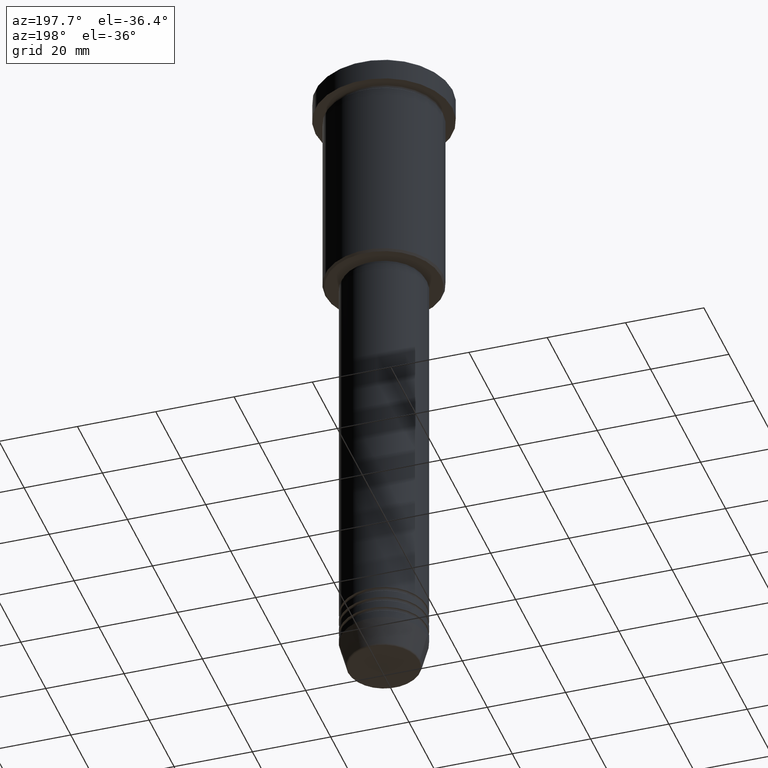
[diagram: clean part render]
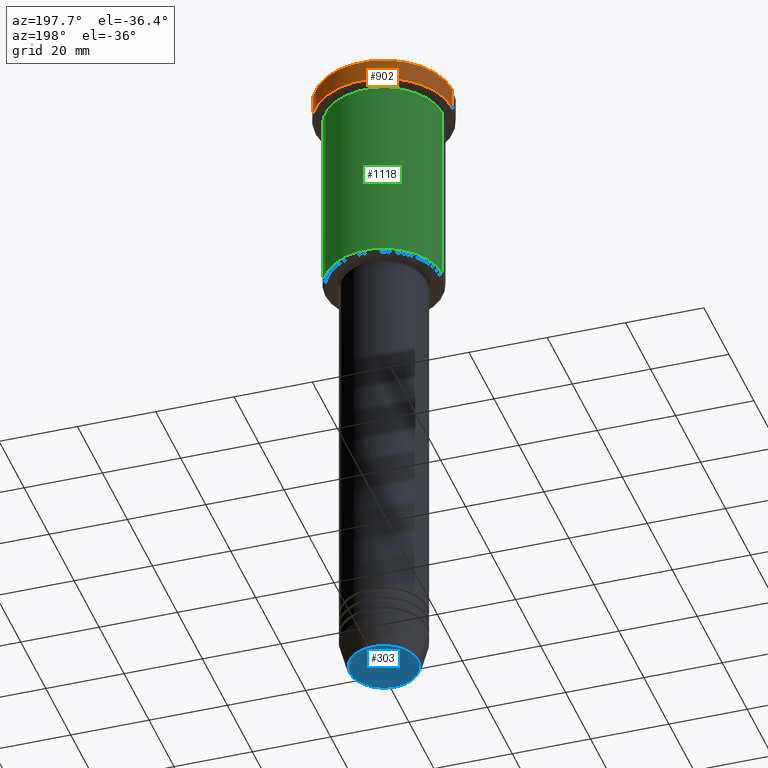
[diagram: same view with three faces highlighted in distinct colors, each labeled with its STEP entity id]
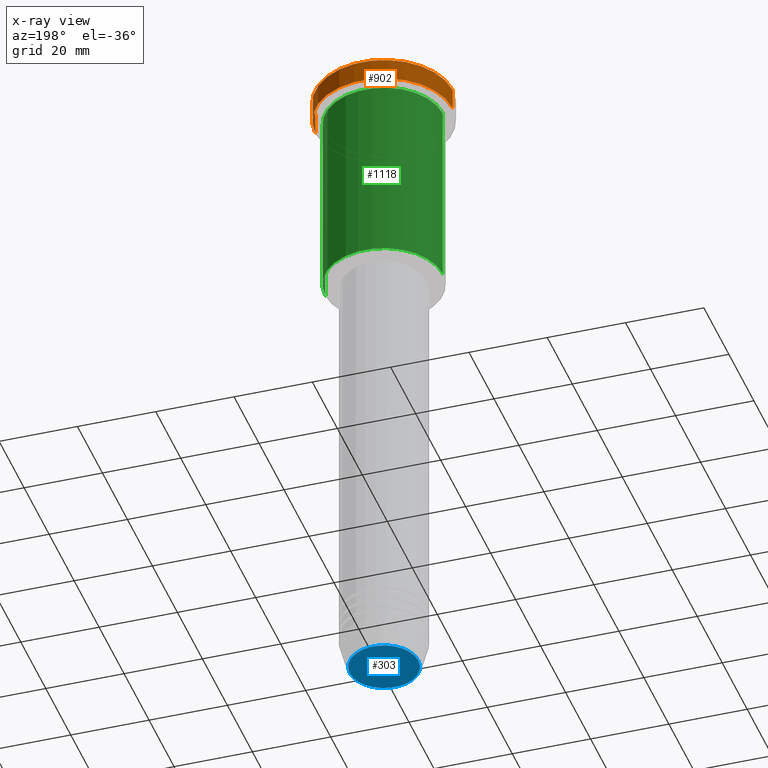
[diagram: x-ray of the same camera — body ghosted, the three highlighted faces saturated]
A machine part, auxiliary view with three faces highlighted in distinct colors.
The next image is the same camera in x-ray (body ghosted, the three faces saturated) — at least one of them is partly hidden behind the body in this view.
Their STEP definitions:

[orange] entity #902 — the highlighted cylindrical surface (partial cylindrical patch) has radius 17.5 mm, axis along (-0, -0, 1).
#12 = AXIS2_PLACEMENT_3D ( 'NONE', #865, #316, #884 ) ;
#73 = ORIENTED_EDGE ( 'NONE', *, *, #1004, .F. ) ;
#85 = CARTESIAN_POINT ( 'NONE',  ( 17.50000000000000000, 0.000000000000000000, -5.999999999999995559 ) ) ;
#89 = AXIS2_PLACEMENT_3D ( 'NONE', #387, #1006, #746 ) ;
#141 = VERTEX_POINT ( 'NONE', #85 ) ;
#214 = AXIS2_PLACEMENT_3D ( 'NONE', #1089, #563, #929 ) ;
#229 = EDGE_CURVE ( 'NONE', #623, #323, #1115, .T. ) ;
#231 = ORIENTED_EDGE ( 'NONE', *, *, #639, .T. ) ;
#316 = DIRECTION ( 'NONE',  ( -0.000000000000000000, -0.000000000000000000, 1.000000000000000000 ) ) ;
#323 = VERTEX_POINT ( 'NONE', #684 ) ;
#344 = LINE ( 'NONE', #810, #349 ) ;
#349 = VECTOR ( 'NONE', #1163, 1000.000000000000000 ) ;
#375 = CARTESIAN_POINT ( 'NONE',  ( -17.50000000000000000, 2.143131898507868248E-15, -5.999999999999995559 ) ) ;
#387 = CARTESIAN_POINT ( 'NONE',  ( 0.000000000000000000, 0.000000000000000000, -0.4999999999999727995 ) ) ;
#557 = DIRECTION ( 'NONE',  ( -0.000000000000000000, -0.000000000000000000, 1.000000000000000000 ) ) ;
#563 = DIRECTION ( 'NONE',  ( -0.000000000000000000, -0.000000000000000000, 1.000000000000000000 ) ) ;
#623 = VERTEX_POINT ( 'NONE', #1055 ) ;
#639 = EDGE_CURVE ( 'NONE', #141, #851, #1135, .T. ) ;
#684 = CARTESIAN_POINT ( 'NONE',  ( 17.50000000000000000, 0.000000000000000000, -0.4999999999999727995 ) ) ;
#746 = DIRECTION ( 'NONE',  ( 1.000000000000000000, 0.000000000000000000, 0.000000000000000000 ) ) ;
#750 = VECTOR ( 'NONE', #557, 1000.000000000000000 ) ;
#765 = LINE ( 'NONE', #835, #750 ) ;
#810 = CARTESIAN_POINT ( 'NONE',  ( 17.50000000000000000, 0.000000000000000000, 0.000000000000000000 ) ) ;
#835 = CARTESIAN_POINT ( 'NONE',  ( -17.50000000000000000, 2.143131898507868248E-15, 0.000000000000000000 ) ) ;
#851 = VERTEX_POINT ( 'NONE', #375 ) ;
#865 = CARTESIAN_POINT ( 'NONE',  ( 0.000000000000000000, 0.000000000000000000, -5.999999999999995559 ) ) ;
#884 = DIRECTION ( 'NONE',  ( 1.000000000000000000, 0.000000000000000000, 0.000000000000000000 ) ) ;
#902 = ADVANCED_FACE ( 'NONE', ( #1022 ), #1018, .T. ) ;
#929 = DIRECTION ( 'NONE',  ( 1.000000000000000000, 0.000000000000000000, 0.000000000000000000 ) ) ;
#998 = ORIENTED_EDGE ( 'NONE', *, *, #1088, .T. ) ;
#1004 = EDGE_CURVE ( 'NONE', #141, #323, #344, .T. ) ;
#1006 = DIRECTION ( 'NONE',  ( 0.000000000000000000, 0.000000000000000000, -1.000000000000000000 ) ) ;
#1018 = CYLINDRICAL_SURFACE ( 'NONE', #214, 17.50000000000000000 ) ;
#1020 = EDGE_LOOP ( 'NONE', ( #231, #998, #1034, #73 ) ) ;
#1022 = FACE_OUTER_BOUND ( 'NONE', #1020, .T. ) ;
#1034 = ORIENTED_EDGE ( 'NONE', *, *, #229, .T. ) ;
#1055 = CARTESIAN_POINT ( 'NONE',  ( -17.50000000000000000, 2.143131898507868248E-15, -0.4999999999999727995 ) ) ;
#1088 = EDGE_CURVE ( 'NONE', #851, #623, #765, .T. ) ;
#1089 = CARTESIAN_POINT ( 'NONE',  ( 0.000000000000000000, 0.000000000000000000, 0.000000000000000000 ) ) ;
#1115 = CIRCLE ( 'NONE', #89, 17.50000000000000000 ) ;
#1135 = CIRCLE ( 'NONE', #12, 17.50000000000000000 ) ;
#1163 = DIRECTION ( 'NONE',  ( -0.000000000000000000, -0.000000000000000000, 1.000000000000000000 ) ) ;

[blue] entity #303 — the highlighted planar face has unit normal (0, -0, 1).
#84 = CARTESIAN_POINT ( 'NONE',  ( -8.740692158992663607, 1.099999016768740442E-15, -170.9999999999999716 ) ) ;
#102 = FACE_OUTER_BOUND ( 'NONE', #260, .T. ) ;
#260 = EDGE_LOOP ( 'NONE', ( #735, #728 ) ) ;
#303 = ADVANCED_FACE ( 'NONE', ( #102 ), #479, .F. ) ;
#363 = CIRCLE ( 'NONE', #1043, 8.740692158992663607 ) ;
#433 = CARTESIAN_POINT ( 'NONE',  ( 0.000000000000000000, 0.000000000000000000, -170.9999999999999716 ) ) ;
#437 = DIRECTION ( 'NONE',  ( 1.000000000000000000, 0.000000000000000000, 0.000000000000000000 ) ) ;
#462 = CARTESIAN_POINT ( 'NONE',  ( 0.000000000000000000, 0.000000000000000000, -170.9999999999999716 ) ) ;
#464 = DIRECTION ( 'NONE',  ( 0.000000000000000000, -0.000000000000000000, 1.000000000000000000 ) ) ;
#479 = PLANE ( 'NONE',  #730 ) ;
#640 = CARTESIAN_POINT ( 'NONE',  ( 8.740692158992663607, 0.000000000000000000, -170.9999999999999716 ) ) ;
#642 = VERTEX_POINT ( 'NONE', #84 ) ;
#675 = EDGE_CURVE ( 'NONE', #938, #642, #363, .T. ) ;
#728 = ORIENTED_EDGE ( 'NONE', *, *, #1146, .T. ) ;
#730 = AXIS2_PLACEMENT_3D ( 'NONE', #854, #464, #841 ) ;
#735 = ORIENTED_EDGE ( 'NONE', *, *, #675, .T. ) ;
#748 = DIRECTION ( 'NONE',  ( 0.000000000000000000, 0.000000000000000000, -1.000000000000000000 ) ) ;
#815 = DIRECTION ( 'NONE',  ( 0.000000000000000000, 0.000000000000000000, -1.000000000000000000 ) ) ;
#841 = DIRECTION ( 'NONE',  ( 1.000000000000000000, 0.000000000000000000, 0.000000000000000000 ) ) ;
#854 = CARTESIAN_POINT ( 'NONE',  ( 0.000000000000000000, 0.000000000000000000, -170.9999999999999716 ) ) ;
#938 = VERTEX_POINT ( 'NONE', #640 ) ;
#1043 = AXIS2_PLACEMENT_3D ( 'NONE', #433, #815, #437 ) ;
#1058 = AXIS2_PLACEMENT_3D ( 'NONE', #462, #748, #1077 ) ;
#1077 = DIRECTION ( 'NONE',  ( 1.000000000000000000, 0.000000000000000000, 0.000000000000000000 ) ) ;
#1146 = EDGE_CURVE ( 'NONE', #642, #938, #1152, .T. ) ;
#1152 = CIRCLE ( 'NONE', #1058, 8.740692158992663607 ) ;

[green] entity #1118 — the highlighted cylindrical surface (partial cylindrical patch) has radius 15 mm, axis along (-0, -0, 1).
#17 = EDGE_CURVE ( 'NONE', #799, #638, #1041, .T. ) ;
#22 = DIRECTION ( 'NONE',  ( -1.000000000000000000, 0.000000000000000000, 0.000000000000000000 ) ) ;
#31 = CIRCLE ( 'NONE', #690, 15.00000000000000000 ) ;
#64 = EDGE_CURVE ( 'NONE', #1123, #638, #1002, .T. ) ;
#66 = CARTESIAN_POINT ( 'NONE',  ( -15.00000000000000000, 1.836970198721029589E-15, 0.000000000000000000 ) ) ;
#91 = VECTOR ( 'NONE', #127, 1000.000000000000000 ) ;
#92 = VERTEX_POINT ( 'NONE', #807 ) ;
#127 = DIRECTION ( 'NONE',  ( -0.000000000000000000, -0.000000000000000000, 1.000000000000000000 ) ) ;
#147 = ORIENTED_EDGE ( 'NONE', *, *, #562, .F. ) ;
#263 = DIRECTION ( 'NONE',  ( 1.000000000000000000, 0.000000000000000000, 0.000000000000000000 ) ) ;
#302 = DIRECTION ( 'NONE',  ( -0.000000000000000000, -0.000000000000000000, 1.000000000000000000 ) ) ;
#345 = ORIENTED_EDGE ( 'NONE', *, *, #64, .T. ) ;
#354 = CARTESIAN_POINT ( 'NONE',  ( 0.000000000000000000, 0.000000000000000000, -6.999999999999995559 ) ) ;
#393 = CARTESIAN_POINT ( 'NONE',  ( -15.00000000000000000, 1.836970198721029589E-15, -6.999999999999995559 ) ) ;
#399 = ORIENTED_EDGE ( 'NONE', *, *, #947, .T. ) ;
#410 = LINE ( 'NONE', #1126, #91 ) ;
#442 = CARTESIAN_POINT ( 'NONE',  ( 0.000000000000000000, 0.000000000000000000, 0.000000000000000000 ) ) ;
#456 = DIRECTION ( 'NONE',  ( 1.000000000000000000, 0.000000000000000000, 0.000000000000000000 ) ) ;
#498 = ORIENTED_EDGE ( 'NONE', *, *, #17, .F. ) ;
#506 = CYLINDRICAL_SURFACE ( 'NONE', #785, 15.00000000000000000 ) ;
#558 = CARTESIAN_POINT ( 'NONE',  ( 15.00000000000000000, 0.000000000000000000, -6.999999999999995559 ) ) ;
#562 = EDGE_CURVE ( 'NONE', #92, #799, #410, .T. ) ;
#638 = VERTEX_POINT ( 'NONE', #393 ) ;
#643 = CARTESIAN_POINT ( 'NONE',  ( -15.00000000000000000, 1.836970198721029589E-15, -55.50000000000000711 ) ) ;
#690 = AXIS2_PLACEMENT_3D ( 'NONE', #1181, #302, #22 ) ;
#705 = AXIS2_PLACEMENT_3D ( 'NONE', #354, #888, #263 ) ;
#785 = AXIS2_PLACEMENT_3D ( 'NONE', #442, #999, #456 ) ;
#799 = VERTEX_POINT ( 'NONE', #558 ) ;
#807 = CARTESIAN_POINT ( 'NONE',  ( 15.00000000000000000, 0.000000000000000000, -55.50000000000000711 ) ) ;
#888 = DIRECTION ( 'NONE',  ( -0.000000000000000000, -0.000000000000000000, 1.000000000000000000 ) ) ;
#947 = EDGE_CURVE ( 'NONE', #92, #1123, #31, .T. ) ;
#997 = DIRECTION ( 'NONE',  ( -0.000000000000000000, -0.000000000000000000, 1.000000000000000000 ) ) ;
#999 = DIRECTION ( 'NONE',  ( -0.000000000000000000, -0.000000000000000000, 1.000000000000000000 ) ) ;
#1002 = LINE ( 'NONE', #66, #1153 ) ;
#1041 = CIRCLE ( 'NONE', #705, 15.00000000000000000 ) ;
#1073 = EDGE_LOOP ( 'NONE', ( #399, #345, #498, #147 ) ) ;
#1118 = ADVANCED_FACE ( 'NONE', ( #1128 ), #506, .T. ) ;
#1123 = VERTEX_POINT ( 'NONE', #643 ) ;
#1126 = CARTESIAN_POINT ( 'NONE',  ( 15.00000000000000000, 0.000000000000000000, 0.000000000000000000 ) ) ;
#1128 = FACE_OUTER_BOUND ( 'NONE', #1073, .T. ) ;
#1153 = VECTOR ( 'NONE', #997, 1000.000000000000000 ) ;
#1181 = CARTESIAN_POINT ( 'NONE',  ( 0.000000000000000000, 0.000000000000000000, -55.50000000000000711 ) ) ;